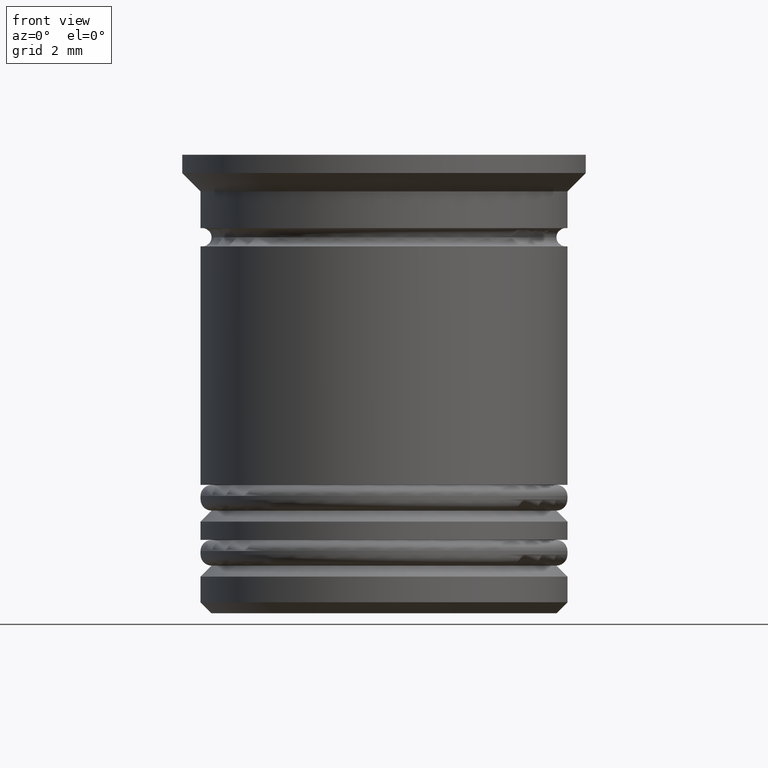
[diagram: clean part render]
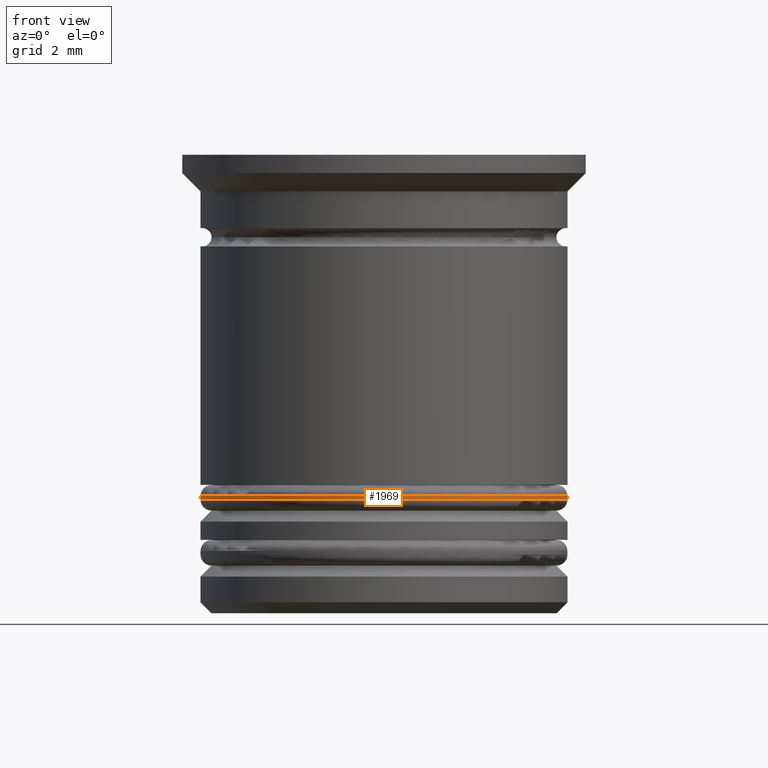
[diagram: same view with one face highlighted and labeled with its STEP entity id]
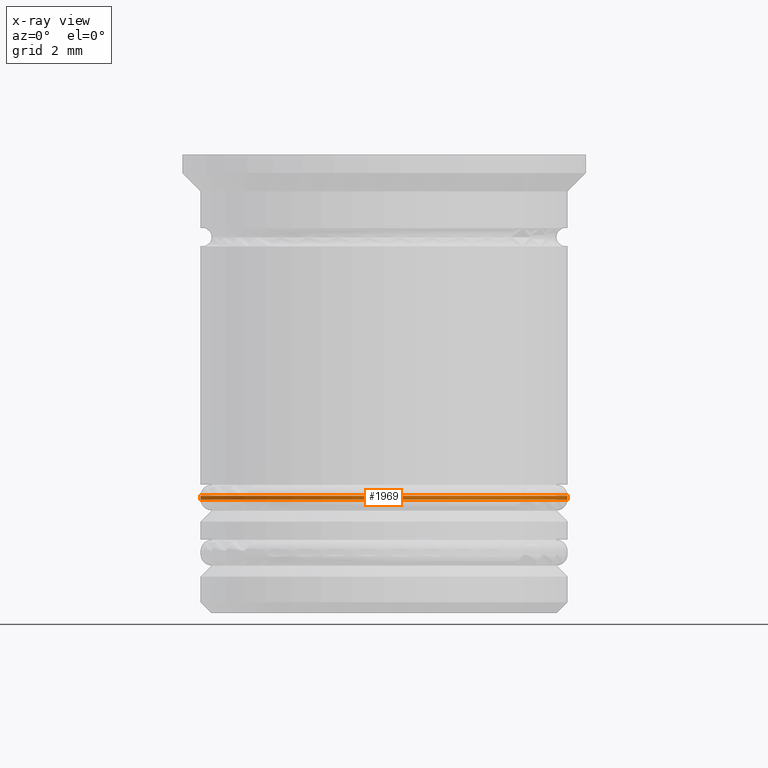
[diagram: x-ray of the same camera — body ghosted, the highlighted face saturated]
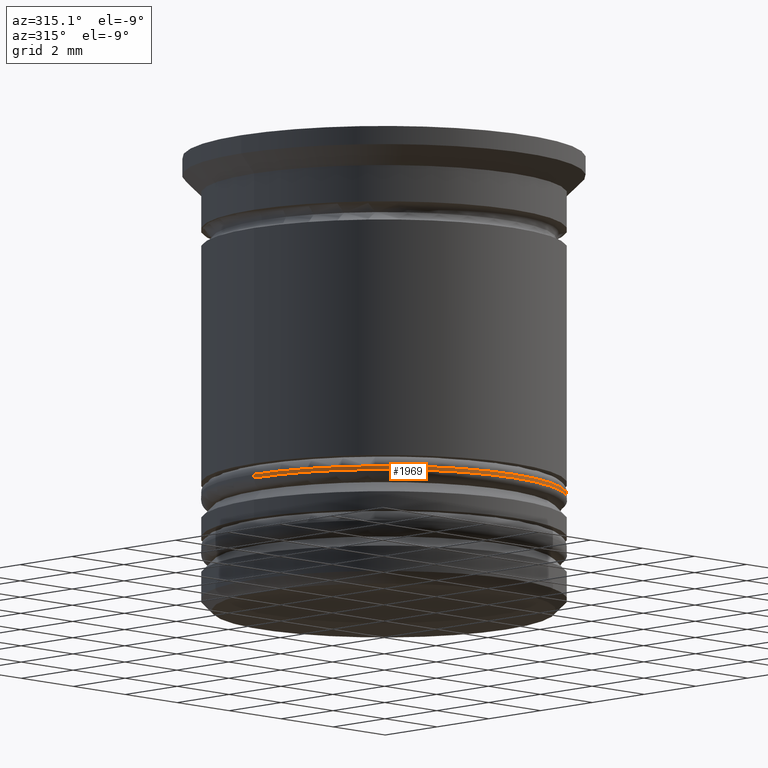
[diagram: same view with one face highlighted and labeled with its STEP entity id]
A machine part, front view. The second image highlights one B-rep face of the part: STEP entity #1969.
The next image is the same camera in x-ray: the body ghosted, the highlighted face saturated — about 0% of this face is hidden behind the body in this view.
A second angle (auxiliary view) of the same face is appended — the face is thin or edge-on in the first view.
In plain terms, the highlighted cylindrical surface (partial cylindrical patch) has radius 5 mm, axis along (-0, -0, 1).
Its self-contained STEP definition (entity closure, byte-faithful):
#50 = DIRECTION ( 'NONE',  ( -0.000000000000000000, -0.000000000000000000, 1.000000000000000000 ) ) ;
#95 = CARTESIAN_POINT ( 'NONE',  ( 5.000000000000000888, 0.000000000000000000, -23.84213562373096451 ) ) ;
#110 = EDGE_LOOP ( 'NONE', ( #535, #959, #578, #1079 ) ) ;
#165 = EDGE_CURVE ( 'NONE', #1991, #1280, #1533, .T. ) ;
#263 = CARTESIAN_POINT ( 'NONE',  ( 0.000000000000000000, 0.000000000000000000, -9.400000000000007461 ) ) ;
#285 = CIRCLE ( 'NONE', #1609, 5.000000000000000888 ) ;
#298 = CARTESIAN_POINT ( 'NONE',  ( 0.000000000000000000, 0.000000000000000000, -23.84213562373096451 ) ) ;
#377 = DIRECTION ( 'NONE',  ( -0.000000000000000000, -0.000000000000000000, 1.000000000000000000 ) ) ;
#424 = DIRECTION ( 'NONE',  ( 1.000000000000000000, 0.000000000000000000, 0.000000000000000000 ) ) ;
#432 = CYLINDRICAL_SURFACE ( 'NONE', #2058, 5.000000000000000888 ) ;
#511 = CARTESIAN_POINT ( 'NONE',  ( -5.000000000000000888, 6.123233995736767268E-16, -9.400000000000007461 ) ) ;
#535 = ORIENTED_EDGE ( 'NONE', *, *, #1741, .F. ) ;
#536 = DIRECTION ( 'NONE',  ( 0.000000000000000000, 0.000000000000000000, -1.000000000000000000 ) ) ;
#558 = VERTEX_POINT ( 'NONE', #1481 ) ;
#578 = ORIENTED_EDGE ( 'NONE', *, *, #165, .T. ) ;
#629 = CIRCLE ( 'NONE', #1844, 5.000000000000000888 ) ;
#696 = LINE ( 'NONE', #1495, #1575 ) ;
#922 = DIRECTION ( 'NONE',  ( 0.000000000000000000, 0.000000000000000000, 1.000000000000000000 ) ) ;
#959 = ORIENTED_EDGE ( 'NONE', *, *, #1357, .T. ) ;
#1000 = VECTOR ( 'NONE', #377, 1000.000000000000000 ) ;
#1079 = ORIENTED_EDGE ( 'NONE', *, *, #1570, .T. ) ;
#1089 = CARTESIAN_POINT ( 'NONE',  ( 5.000000000000000888, 0.000000000000000000, -9.300000000000000711 ) ) ;
#1189 = DIRECTION ( 'NONE',  ( -1.000000000000000000, 0.000000000000000000, 0.000000000000000000 ) ) ;
#1263 = DIRECTION ( 'NONE',  ( -0.000000000000000000, -0.000000000000000000, 1.000000000000000000 ) ) ;
#1280 = VERTEX_POINT ( 'NONE', #1089 ) ;
#1357 = EDGE_CURVE ( 'NONE', #1700, #1991, #285, .T. ) ;
#1481 = CARTESIAN_POINT ( 'NONE',  ( -5.000000000000000888, 6.123233995736767268E-16, -9.300000000000000711 ) ) ;
#1495 = CARTESIAN_POINT ( 'NONE',  ( -5.000000000000000888, 6.123233995736767268E-16, -23.84213562373096451 ) ) ;
#1499 = CARTESIAN_POINT ( 'NONE',  ( 0.000000000000000000, 0.000000000000000000, -9.300000000000000711 ) ) ;
#1533 = LINE ( 'NONE', #95, #1000 ) ;
#1570 = EDGE_CURVE ( 'NONE', #1280, #558, #629, .T. ) ;
#1575 = VECTOR ( 'NONE', #50, 1000.000000000000000 ) ;
#1602 = FACE_OUTER_BOUND ( 'NONE', #110, .T. ) ;
#1609 = AXIS2_PLACEMENT_3D ( 'NONE', #263, #922, #1696 ) ;
#1696 = DIRECTION ( 'NONE',  ( 1.000000000000000000, 0.000000000000000000, 0.000000000000000000 ) ) ;
#1700 = VERTEX_POINT ( 'NONE', #511 ) ;
#1741 = EDGE_CURVE ( 'NONE', #1700, #558, #696, .T. ) ;
#1844 = AXIS2_PLACEMENT_3D ( 'NONE', #1499, #536, #1189 ) ;
#1887 = CARTESIAN_POINT ( 'NONE',  ( 5.000000000000000888, 0.000000000000000000, -9.400000000000007461 ) ) ;
#1969 = ADVANCED_FACE ( 'NONE', ( #1602 ), #432, .T. ) ;
#1991 = VERTEX_POINT ( 'NONE', #1887 ) ;
#2058 = AXIS2_PLACEMENT_3D ( 'NONE', #298, #1263, #424 ) ;